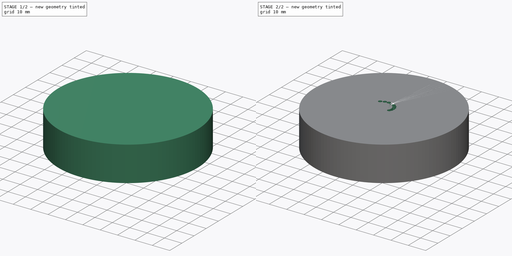
[diagram: build sequence overview — one tinted view per stage of 2, left to right]
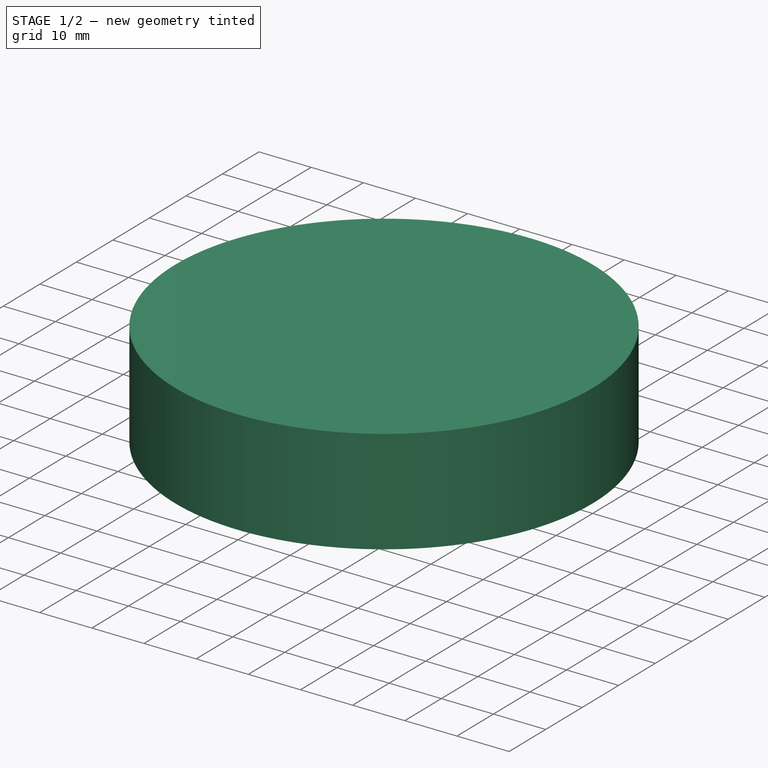
[diagram: stage 1 of 2 — iso view after this stage's code; geometry added in this stage tinted green]
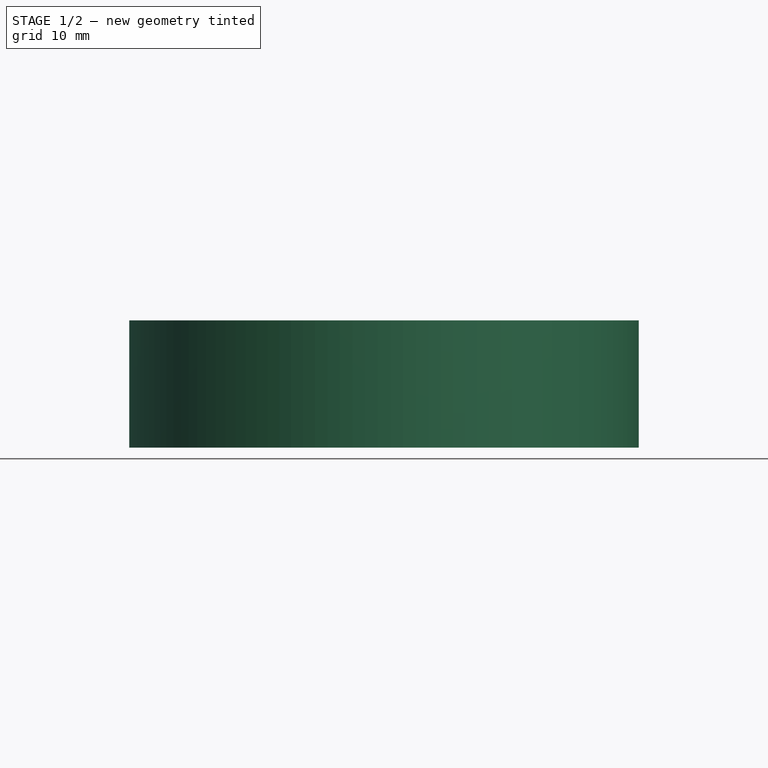
[diagram: stage 1 of 2 — front view after this stage's code; geometry added in this stage tinted green]
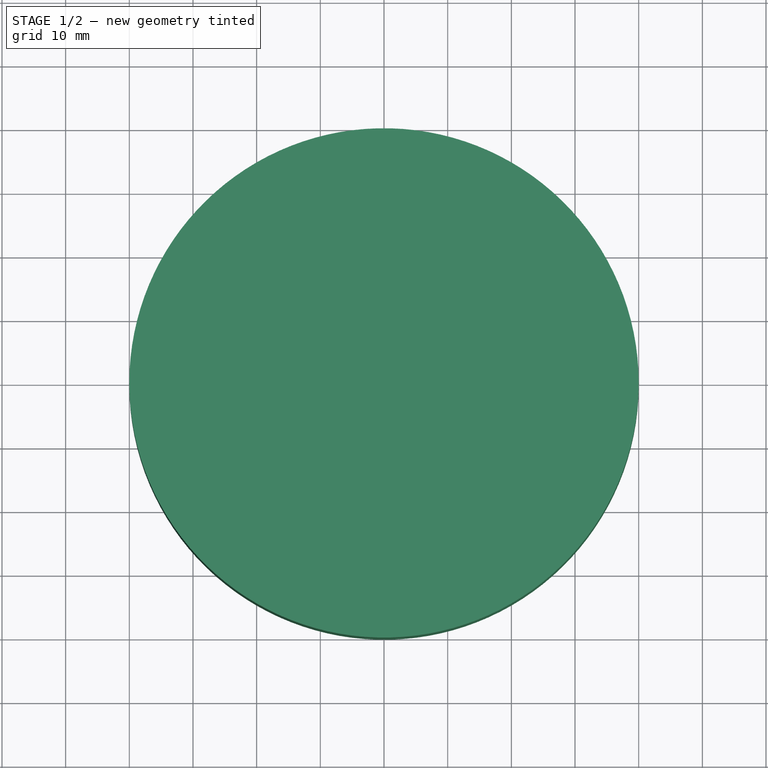
[diagram: stage 1 of 2 — top view after this stage's code; geometry added in this stage tinted green]
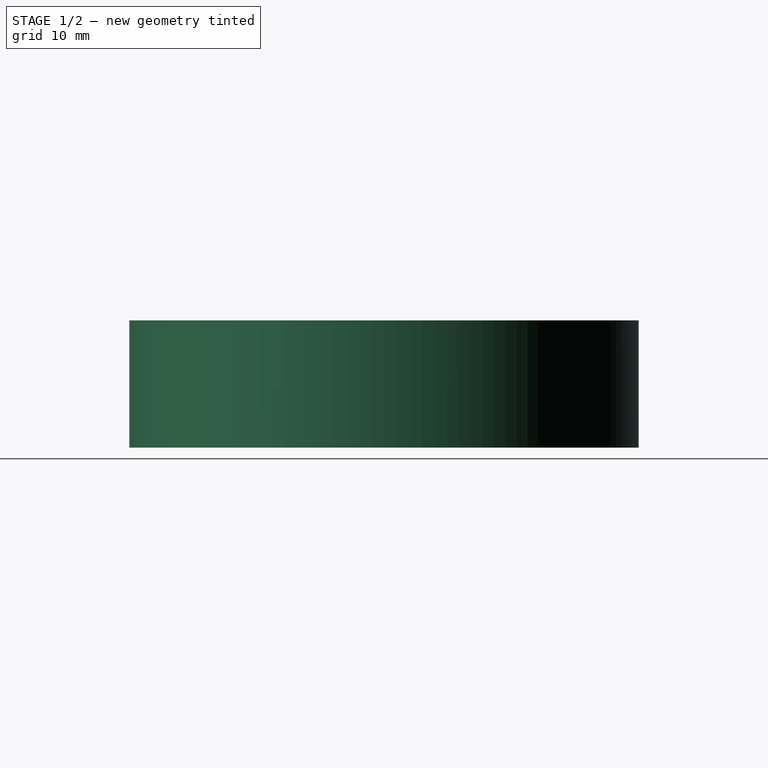
[diagram: stage 1 of 2 — right view after this stage's code; geometry added in this stage tinted green]
FCSTD DOCUMENT  (FreeCAD 2023.131R26244 +5365 (Git))
Label: Spiral Cribbage Board
License: All rights reserved
LicenseURL: http://en.wikipedia.org/wiki/All_rights_reserved
objects: Sketcher::SketchObject×2, Spreadsheet::Sheet×1, PartDesign::Pad×1, PartDesign::Pocket×1, PartDesign::Body×1
note: 11 computed .brp shape members not serialized (recipe doc carries the construction recipe); baked Part::Feature solids carry a one-line shape summary decoded from their .brp

FEATURE [Spreadsheet::Sheet] Spreadsheet  label="Parameters"
  PythonMode = false
  ShowCells = 0
  TreeRank = 1
  cells = A1=Board Diamter; B1(Board_Diameter)=80; D1=Hole; E1=X; F1=Y; A2=Board Top Thickness; B2(Board_Top_Thickness)=20; D2=0; E2(Hole_1_X)==(Peg_Track_Min_Diameter / 2 + D2 * (Peg_Track_Max_Diameter - Peg_Track_Min_Diameter) / 2 / 59) * cos(D2 * 900 / 59); F2(Hole_1_Y)==(Peg_Track_Min_Diameter / 2 + D2 * (Peg_Track_Max_Diameter - Peg_Track_Min_Diameter) / 2 / 59) * sin(D2 * 900 / 59); A3=Board Bottom Thickness; B3(Board_Botttom_Thickness)=30; D3=1; E3(Hole_2_X)==(Peg_Track_Min_Diameter / 2 + D3 * (Peg_Track_Max_Diameter - Peg_Track_Min_Diameter) / 2 / 59) * cos(D3 * 900 / 59); F3(Hole_2_Y)==(Peg_Track_Min_Diameter / 2 + D3 * (Peg_Track_Max_Diameter - Peg_Track_Min_Diameter) / 2 / 59) * sin(D3 * 900 / 59); D4=2; E4(Hole_3_X)==(Peg_Track_Min_Diameter / 2 + D4 * (Peg_Track_Max_Diameter - Peg_Track_Min_Diameter) / 2 / 59) * cos(D4 * 900 / 59); F4(Hole_3_Y)==(Peg_Track_Min_Diameter / 2 + D4 * (Peg_Track_Max_Diameter - Peg_Track_Min_Diameter) / 2 / 59) * sin(D4 * 900 / 59); A5=Peg Track Outer Diameter; B5(Peg_Track_Max_Diameter)==Board_Diameter - Peg_Hole_Diameter; D5=3; E5(Hole_4_X)==(Peg_Track_Min_Diameter / 2 + D5 * (Peg_Track_Max_Diameter - Peg_Track_Min_Diameter) / 2 / 59) * cos(D5 * 900 / 59); F5(Hole_4_Y)==(Peg_Track_Min_Diameter / 2 + D5 * (Peg_Track_Max_Diameter - Peg_Track_Min_Diameter) / 2 / 59) * sin(D5 * 900 / 59); A6=Peg Track Inner Diameter; B6(Peg_Track_Min_Diameter)=6; D6=4; E6(Hole_5_X)==(Peg_Track_Min_Diameter / 2 + D6 * (Peg_Track_Max_Diameter - Peg_Track_Min_Diameter) / 2 / 59) * cos(D6 * 900 / 59); F6(Hole_5_Y)==(Peg_Track_Min_Diameter / 2 + D6 * (Peg_Track_Max_Diameter - Peg_Track_Min_Diameter) / 2 / 59) * sin(D6 * 900 / 59); A7=Peg Hole Diameter; B7(Peg_Hole_Diameter)=2; D7=5; E7(Hole_6_X)==(Peg_Track_Min_Diameter / 2 + D7 * (Peg_Track_Max_Diameter - Peg_Track_Min_Diameter) / 2 / 59) * cos(D7 * 900 / 59); F7(Hole_6_Y)==(Peg_Track_Min_Diameter / 2 + D7 * (Peg_Track_Max_Diameter - Peg_Track_Min_Diameter) / 2 / 59) * sin(D7 * 900 / 59); A8=Peg Hole Depth; B8(Pet_Hole_Depth)=4; D8=6; E8(Hole_7_X)==(Peg_Track_Min_Diameter / 2 + D8 * (Peg_Track_Max_Diameter - Peg_Track_Min_Diameter) / 2 / 59) * cos(D8 * 900 / 59); F8(Hole_7_Y)==(Peg_Track_Min_Diameter / 2 + D8 * (Peg_Track_Max_Diameter - Peg_Track_Min_Diameter) / 2 / 59) * sin(D8 * 900 / 59); D9=7; E9(Hole_8_X)==(Peg_Track_Min_Diameter / 2 + D9 * (Peg_Track_Max_Diameter - Peg_Track_Min_Diameter) / 2 / 59) * cos(D9 * 900 / 59); F9(Hole_8_Y)==(Peg_Track_Min_Diameter / 2 + D9 * (Peg_Track_Max_Diameter - Peg_Track_Min_Diameter) / 2 / 59) * sin(D9 * 900 / 59); D10=8; E10(Hole_9_X)==(Peg_Track_Min_Diameter / 2 + D10 * (Peg_Track_Max_Diameter - Peg_Track_Min_Diameter) / 2 / 59) * cos(D10 * 900 / 59); F10(Hole_9_Y)==(Peg_Track_Min_Diameter / 2 + D10 * (Peg_Track_Max_Diameter - Peg_Track_Min_Diameter) / 2 / 59) * sin(D10 * 900 / 59); D11=9; E11(Hole_10_X)==(Peg_Track_Min_Diameter / 2 + D11 * (Peg_Track_Max_Diameter - Peg_Track_Min_Diameter) / 2 / 59) * cos(D11 * 900 / 59); F11(Hole_10_Y)==(Peg_Track_Min_Diameter / 2 + D11 * (Peg_Track_Max_Diameter - Peg_Track_Min_Diameter) / 2 / 59) * sin(D11 * 900 / 59); D12=10; E12==(Peg_Track_Min_Diameter / 2 + D12 * (Peg_Track_Max_Diameter - Peg_Track_Min_Diameter) / 2 / 59) * cos(D12 * 900 / 59); F12==(Peg_Track_Min_Diameter / 2 + D12 * (Peg_Track_Max_Diameter - Peg_Track_Min_Diameter) / 2 / 59) * sin(D12 * 900 / 59); D13=11; E13==(Peg_Track_Min_Diameter / 2 + D13 * (Peg_Track_Max_Diameter - Peg_Track_Min_Diameter) / 2 / 59) * cos(D13 * 900 / 59); F13==(Peg_Track_Min_Diameter / 2 + D13 * (Peg_Track_Max_Diameter - Peg_Track_Min_Diameter) / 2 / 59) * sin(D13 * 900 / 59); D14=12; E14==(Peg_Track_Min_Diameter / 2 + D14 * (Peg_Track_Max_Diameter - Peg_Track_Min_Diameter) / 2 / 59) * cos(D14 * 900 / 59); F14==(Peg_Track_Min_Diameter / 2 + D14 * (Peg_Track_Max_Diameter - Peg_Track_Min_Diameter) / 2 / 59) * sin(D14 * 900 / 59); D15=13; E15==(Peg_Track_Min_Diameter / 2 + D15 * (Peg_Track_Max_Diameter - Peg_Track_Min_Diameter) / 2 / 59) * cos(D15 * 900 / 59); F15==(Peg_Track_Min_Diameter / 2 + D15 * (Peg_Track_Max_Diameter - Peg_Track_Min_Diameter) / 2 / 59) * sin(D15 * 900 / 59); D16=14; E16==(Peg_Track_Min_Diameter / 2 + D16 * (Peg_Track_Max_Diameter - Peg_Track_Min_Diameter) / 2 / 59) * cos(D16 * 900 / 59); F16==(Peg_Track_Min_Diameter / 2 + D16 * (Peg_Track_Max_Diameter - Peg_Track_Min_Diameter) / 2 / 59) * sin(D16 * 900 / 59); D17=15; E17==(Peg_Track_Min_Diameter / 2 + D17 * (Peg_Track_Max_Diameter - Peg_Track_Min_Diameter) / 2 / 59) * cos(D17 * 900 / 59); F17==(Peg_Track_Min_Diameter / 2 + D17 * (Peg_Track_Max_Diameter - Peg_Track_Min_Diameter) / 2 / 59) * sin(D17 * 900 / 59); D18=16; E18==(Peg_Track_Min_Diameter / 2 + D18 * (Peg_Track_Max_Diameter - Peg_Track_Min_Diameter) / 2 / 59) * cos(D18 * 900 / 59); F18==(Peg_Track_Min_Diameter / 2 + D18 * (Peg_Track_Max_Diameter - Peg_Track_Min_Diameter) / 2 / 59) * sin(D18 * 900 / 59); D19=17; E19==(Peg_Track_Min_Diameter / 2 + D19 * (Peg_Track_Max_Diameter - Peg_Track_Min_Diameter) / 2 / 59) * cos(D19 * 900 / 59); F19==(Peg_Track_Min_Diameter / 2 + D19 * (Peg_Track_Max_Diameter - Peg_Track_Min_Diameter) / 2 / 59) * sin(D19 * 900 / 59); D20=18; E20==(Peg_Track_Min_Diameter / 2 + D20 * (Peg_Track_Max_Diameter - Peg_Track_Min_Diameter) / 2 / 59) * cos(D20 * 900 / 59); F20==(Peg_Track_Min_Diameter / 2 + D20 * (Peg_Track_Max_Diameter - Peg_Track_Min_Diameter) / 2 / 59) * sin(D20 * 900 / 59); D21=19; E21==(Peg_Track_Min_Diameter / 2 + D21 * (Peg_Track_Max_Diameter - Peg_Track_Min_Diameter) / 2 / 59) * cos(D21 * 900 / 59); F21==(Peg_Track_Min_Diameter / 2 + D21 * (Peg_Track_Max_Diameter - Peg_Track_Min_Diameter) / 2 / 59) * sin(D21 * 900 / 59); D22=20; E22==(Peg_Track_Min_Diameter / 2 + D22 * (Peg_Track_Max_Diameter - Peg_Track_Min_Diameter) / 2 / 59) * cos(D22 * 900 / 59); F22==(Peg_Track_Min_Diameter / 2 + D22 * (Peg_Track_Max_Diameter - Peg_Track_Min_Diameter) / 2 / 59) * sin(D22 * 900 / 59); D23=21; E23==(Peg_Track_Min_Diameter / 2 + D23 * (Peg_Track_Max_Diameter - Peg_Track_Min_Diameter) / 2 / 59) * cos(D23 * 900 / 59); F23==(Peg_Track_Min_Diameter / 2 + D23 * (Peg_Track_Max_Diameter - Peg_Track_Min_Diameter) / 2 / 59) * sin(D23 * 900 / 59); D24=22; E24==(Peg_Track_Min_Diameter / 2 + D24 * (Peg_Track_Max_Diameter - Peg_Track_Min_Diameter) / 2 / 59) * cos(D24 * 900 / 59); F24==(Peg_Track_Min_Diameter / 2 + D24 * (Peg_Track_Max_Diameter - Peg_Track_Min_Diameter) / 2 / 59) * sin(D24 * 900 / 59); D25=23; E25==(Peg_Track_Min_Diameter / 2 + D25 * (Peg_Track_Max_Diameter - Peg_Track_Min_Diameter) / 2 / 59) * cos(D25 * 900 / 59); F25==(Peg_Track_Min_Diameter / 2 + D25 * (Peg_Track_Max_Diameter - Peg_Track_Min_Diameter) / 2 / 59) * sin(D25 * 900 / 59); D26=24; E26==(Peg_Track_Min_Diameter / 2 + D26 * (Peg_Track_Max_Diameter - Peg_Track_Min_Diameter) / 2 / 59) * cos(D26 * 900 / 59); F26==(Peg_Track_Min_Diameter / 2 + D26 * (Peg_Track_Max_Diameter - Peg_Track_Min_Diameter) / 2 / 59) * sin(D26 * 900 / 59); D27=25; E27==(Peg_Track_Min_Diameter / 2 + D27 * (Peg_Track_Max_Diameter - Peg_Track_Min_Diameter) / 2 / 59) * cos(D27 * 900 / 59); F27==(Peg_Track_Min_Diameter / 2 + D27 * (Peg_Track_Max_Diameter - Peg_Track_Min_Diameter) / 2 / 59) * sin(D27 * 900 / 59); D28=26; E28==(Peg_Track_Min_Diameter / 2 + D28 * (Peg_Track_Max_Diameter - Peg_Track_Min_Diameter) / 2 / 59) * cos(D28 * 900 / 59); F28==(Peg_Track_Min_Diameter / 2 + D28 * (Peg_Track_Max_Diameter - Peg_Track_Min_Diameter) / 2 / 59) * sin(D28 * 900 / 59); D29=27; E29==(Peg_Track_Min_Diameter / 2 + D29 * (Peg_Track_Max_Diameter - Peg_Track_Min_Diameter) / 2 / 59) * cos(D29 * 900 / 59); F29==(Peg_Track_Min_Diameter / 2 + D29 * (Peg_Track_Max_Diameter - Peg_Track_Min_Diameter) / 2 / 59) * sin(D29 * 900 / 59); D30=28; E30==(Peg_Track_Min_Diameter / 2 + D30 * (Peg_Track_Max_Diameter - Peg_Track_Min_Diameter) / 2 / 59) * cos(D30 * 900 / 59); F30==(Peg_Track_Min_Diameter / 2 + D30 * (Peg_Track_Max_Diameter - Peg_Track_Min_Diameter) / 2 / 59) * sin(D30 * 900 / 59); D31=29; E31==(Peg_Track_Min_Diameter / 2 + D31 * (Peg_Track_Max_Diameter - Peg_Track_Min_Diameter) / 2 / 59) * cos(D31 * 900 / 59); F31==(Peg_Track_Min_Diameter / 2 + D31 * (Peg_Track_Max_Diameter - Peg_Track_Min_Diameter) / 2 / 59) * sin(D31 * 900 / 59); D32=30; E32==(Peg_Track_Min_Diameter / 2 + D32 * (Peg_Track_Max_Diameter - Peg_Track_Min_Diameter) / 2 / 59) * cos(D32 * 900 / 59); F32==(Peg_Track_Min_Diameter / 2 + D32 * (Peg_Track_Max_Diameter - Peg_Track_Min_Diameter) / 2 / 59) * sin(D32 * 900 / 59); D33=31; E33==(Peg_Track_Min_Diameter / 2 + D33 * (Peg_Track_Max_Diameter - Peg_Track_Min_Diameter) / 2 / 59) * cos(D33 * 900 / 59); F33==(Peg_Track_Min_Diameter / 2 + D33 * (Peg_Track_Max_Diameter - Peg_Track_Min_Diameter) / 2 / 59) * sin(D33 * 900 / 59); D34=32; E34==(Peg_Track_Min_Diameter / 2 + D34 * (Peg_Track_Max_Diameter - Peg_Track_Min_Diameter) / 2 / 59) * cos(D34 * 900 / 59); F34==(Peg_Track_Min_Diameter / 2 + D34 * (Peg_Track_Max_Diameter - Peg_Track_Min_Diameter) / 2 / 59) * sin(D34 * 900 / 59); D35=33; E35==(Peg_Track_Min_Diameter / 2 + D35 * (Peg_Track_Max_Diameter - Peg_Track_Min_Diameter) / 2 / 59) * cos(D35 * 900 / 59); F35==(Peg_Track_Min_Diameter / 2 + D35 * (Peg_Track_Max_Diameter - Peg_Track_Min_Diameter) / 2 / 59) * sin(D35 * 900 / 59); D36=34; E36==(Peg_Track_Min_Diameter / 2 + D36 * (Peg_Track_Max_Diameter - Peg_Track_Min_Diameter) / 2 / 59) * cos(D36 * 900 / 59); F36==(Peg_Track_Min_Diameter / 2 + D36 * (Peg_Track_Max_Diameter - Peg_Track_Min_Diameter) / 2 / 59) * sin(D36 * 900 / 59); D37=35; E37==(Peg_Track_Min_Diameter / 2 + D37 * (Peg_Track_Max_Diameter - Peg_Track_Min_Diameter) / 2 / 59) * cos(D37 * 900 / 59); F37==(Peg_Track_Min_Diameter / 2 + D37 * (Peg_Track_Max_Diameter - Peg_Track_Min_Diameter) / 2 / 59) * sin(D37 * 900 / 59); D38=36; E38==(Peg_Track_Min_Diameter / 2 + D38 * (Peg_Track_Max_Diameter - Peg_Track_Min_Diameter) / 2 / 59) * cos(D38 * 900 / 59); F38==(Peg_Track_Min_Diameter / 2 + D38 * (Peg_Track_Max_Diameter - Peg_Track_Min_Diameter) / 2 / 59) * sin(D38 * 900 / 59); D39=37; E39==(Peg_Track_Min_Diameter / 2 + D39 * (Peg_Track_Max_Diameter - Peg_Track_Min_Diameter) / 2 / 59) * cos(D39 * 900 / 59); F39==(Peg_Track_Min_Diameter / 2 + D39 * (Peg_Track_Max_Diameter - Peg_Track_Min_Diameter) / 2 / 59) * sin(D39 * 900 / 59); D40=38; E40==(Peg_Track_Min_Diameter / 2 + D40 * (Peg_Track_Max_Diameter - Peg_Track_Min_Diameter) / 2 / 59) * cos(D40 * 900 / 59); F40==(Peg_Track_Min_Diameter / 2 + D40 * (Peg_Track_Max_Diameter - Peg_Track_Min_Diameter) / 2 / 59) * sin(D40 * 900 / 59); D41=39; E41==(Peg_Track_Min_Diameter / 2 + D41 * (Peg_Track_Max_Diameter - Peg_Track_Min_Diameter) / 2 / 59) * cos(D41 * 900 / 59); F41==(Peg_Track_Min_Diameter / 2 + D41 * (Peg_Track_Max_Diameter - Peg_Track_Min_Diameter) / 2 / 59) * sin(D41 * 900 / 59); D42=40; E42==(Peg_Track_Min_Diameter / 2 + D42 * (Peg_Track_Max_Diameter - Peg_Track_Min_Diameter) / 2 / 59) * cos(D42 * 900 / 59); F42==(Peg_Track_Min_Diameter / 2 + D42 * (Peg_Track_Max_Diameter - Peg_Track_Min_Diameter) / 2 / 59) * sin(D42 * 900 / 59); D43=41; E43==(Peg_Track_Min_Diameter / 2 + D43 * (Peg_Track_Max_Diameter - Peg_Track_Min_Diameter) / 2 / 59) * cos(D43 * 900 / 59); F43==(Peg_Track_Min_Diameter / 2 + D43 * (Peg_Track_Max_Diameter - Peg_Track_Min_Diameter) / 2 / 59) * sin(D43 * 900 / 59); D44=42; E44==(Peg_Track_Min_Diameter / 2 + D44 * (Peg_Track_Max_Diameter - Peg_Track_Min_Diameter) / 2 / 59) * cos(D44 * 900 / 59); F44==(Peg_Track_Min_Diameter / 2 + D44 * (Peg_Track_Max_Diameter - Peg_Track_Min_Diameter) / 2 / 59) * sin(D44 * 900 / 59); D45=43; E45==(Peg_Track_Min_Diameter / 2 + D45 * (Peg_Track_Max_Diameter - Peg_Track_Min_Diameter) / 2 / 59) * cos(D45 * 900 / 59); F45==(Peg_Track_Min_Diameter / 2 + D45 * (Peg_Track_Max_Diameter - Peg_Track_Min_Diameter) / 2 / 59) * sin(D45 * 900 / 59); D46=44; E46==(Peg_Track_Min_Diameter / 2 + D46 * (Peg_Track_Max_Diameter - Peg_Track_Min_Diameter) / 2 / 59) * cos(D46 * 900 / 59); F46==(Peg_Track_Min_Diameter / 2 + D46 * (Peg_Track_Max_Diameter - Peg_Track_Min_Diameter) / 2 / 59) * sin(D46 * 900 / 59); D47=45; E47==(Peg_Track_Min_Diameter / 2 + D47 * (Peg_Track_Max_Diameter - Peg_Track_Min_Diameter) / 2 / 59) * cos(D47 * 900 / 59); F47==(Peg_Track_Min_Diameter / 2 + D47 * (Peg_Track_Max_Diameter - Peg_Track_Min_Diameter) / 2 / 59) * sin(D47 * 900 / 59); D48=46; E48==(Peg_Track_Min_Diameter / 2 + D48 * (Peg_Track_Max_Diameter - Peg_Track_Min_Diameter) / 2 / 59) * cos(D48 * 900 / 59); F48==(Peg_Track_Min_Diameter / 2 + D48 * (Peg_Track_Max_Diameter - Peg_Track_Min_Diameter) / 2 / 59) * sin(D48 * 900 / 59); D49=47; E49==(Peg_Track_Min_Diameter / 2 + D49 * (Peg_Track_Max_Diameter - Peg_Track_Min_Diameter) / 2 / 59) * cos(D49 * 900 / 59); F49==(Peg_Track_Min_Diameter / 2 + D49 * (Peg_Track_Max_Diameter - Peg_Track_Min_Diameter) / 2 / 59) * sin(D49 * 900 / 59); D50=48; E50==(Peg_Track_Min_Diameter / 2 + D50 * (Peg_Track_Max_Diameter - Peg_Track_Min_Diameter) / 2 / 59) * cos(D50 * 900 / 59); F50==(Peg_Track_Min_Diameter / 2 + D50 * (Peg_Track_Max_Diameter - Peg_Track_Min_Diameter) / 2 / 59) * sin(D50 * 900 / 59); D51=49; E51==(Peg_Track_Min_Diameter / 2 + D51 * (Peg_Track_Max_Diameter - Peg_Track_Min_Diameter) / 2 / 59) * cos(D51 * 900 / 59); F51==(Peg_Track_Min_Diameter / 2 + D51 * (Peg_Track_Max_Diameter - Peg_Track_Min_Diameter) / 2 / 59) * sin(D51 * 900 / 59); D52=50; E52==(Peg_Track_Min_Diameter / 2 + D52 * (Peg_Track_Max_Diameter - Peg_Track_Min_Diameter) / 2 / 59) * cos(D52 * 900 / 59); F52==(Peg_Track_Min_Diameter / 2 + D52 * (Peg_Track_Max_Diameter - Peg_Track_Min_Diameter) / 2 / 59) * sin(D52 * 900 / 59); D53=51; E53==(Peg_Track_Min_Diameter / 2 + D53 * (Peg_Track_Max_Diameter - Peg_Track_Min_Diameter) / 2 / 59) * cos(D53 * 900 / 59); F53==(Peg_Track_Min_Diameter / 2 + D53 * (Peg_Track_Max_Diameter - Peg_Track_Min_Diameter) / 2 / 59) * sin(D53 * 900 / 59); D54=52; E54==(Peg_Track_Min_Diameter / 2 + D54 * (Peg_Track_Max_Diameter - Peg_Track_Min_Diameter) / 2 / 59) * cos(D54 * 900 / 59); F54==(Peg_Track_Min_Diameter / 2 + D54 * (Peg_Track_Max_Diameter - Peg_Track_Min_Diameter) / 2 / 59) * sin(D54 * 900 / 59); D55=53; E55==(Peg_Track_Min_Diameter / 2 + D55 * (Peg_Track_Max_Diameter - Peg_Track_Min_Diameter) / 2 / 59) * cos(D55 * 900 / 59); F55==(Peg_Track_Min_Diameter / 2 + D55 * (Peg_Track_Max_Diameter - Peg_Track_Min_Diameter) / 2 / 59) * sin(D55 * 900 / 59); D56=54; E56==(Peg_Track_Min_Diameter / 2 + D56 * (Peg_Track_Max_Diameter - Peg_Track_Min_Diameter) / 2 / 59) * cos(D56 * 900 / 59); F56==(Peg_Track_Min_Diameter / 2 + D56 * (Peg_Track_Max_Diameter - Peg_Track_Min_Diameter) / 2 / 59) * sin(D56 * 900 / 59); D57=55; E57==(Peg_Track_Min_Diameter / 2 + D57 * (Peg_Track_Max_Diameter - Peg_Track_Min_Diameter) / 2 / 59) * cos(D57 * 900 / 59); F57==(Peg_Track_Min_Diameter / 2 + D57 * (Peg_Track_Max_Diameter - Peg_Track_Min_Diameter) / 2 / 59) * sin(D57 * 900 / 59); D58=56; E58==(Peg_Track_Min_Diameter / 2 + D58 * (Peg_Track_Max_Diameter - Peg_Track_Min_Diameter) / 2 / 59) * cos(D58 * 900 / 59); F58==(Peg_Track_Min_Diameter / 2 + D58 * (Peg_Track_Max_Diameter - Peg_Track_Min_Diameter) / 2 / 59) * sin(D58 * 900 / 59); D59=57; E59==(Peg_Track_Min_Diameter / 2 + D59 * (Peg_Track_Max_Diameter - Peg_Track_Min_Diameter) / 2 / 59) * cos(D59 * 900 / 59); F59==(Peg_Track_Min_Diameter / 2 + D59 * (Peg_Track_Max_Diameter - Peg_Track_Min_Diameter) / 2 / 59) * sin(D59 * 900 / 59); D60=58; E60==(Peg_Track_Min_Diameter / 2 + D60 * (Peg_Track_Max_Diameter - Peg_Track_Min_Diameter) / 2 / 59) * cos(D60 * 900 / 59); F60==(Peg_Track_Min_Diameter / 2 + D60 * (Peg_Track_Max_Diameter - Peg_Track_Min_Diameter) / 2 / 59) * sin(D60 * 900 / 59); D61=59; E61==(Peg_Track_Min_Diameter / 2 + D61 * (Peg_Track_Max_Diameter - Peg_Track_Min_Diameter) / 2 / 59) * cos(D61 * 900 / 59); F61==(Peg_Track_Min_Diameter / 2 + D61 * (Peg_Track_Max_Diameter - Peg_Track_Min_Diameter) / 2 / 59) * sin(D61 * 900 / 59)
FEATURE [Sketcher::SketchObject] Sketch  label="Top Sketch"
  ArcFitTolerance = 1e-06
  AttachmentSupport = -> [XY_Plane]
  ExternalBSplineMaxDegree = 5
  ExternalBSplineTolerance = 0.0001
  FullyConstrained = true
  InternalTolerance = 1e-06
  InvalidShape = false
  MakeInternals = false
  MapMode = 5
  Support = -> [XY_Plane]
  TreeRank = 12
  ValidateShape = true
  expr: Constraints[1] = <<Parameters>>.Board_Diameter
  sketch-geometry (1):
    g0: Circle CenterX=0 CenterY=0 CenterZ=0 NormalX=0 NormalY=0 NormalZ=1 AngleXU=0 Radius=40
  constraints (2):
    c: Coincident(g0,g-1)
    c: Diameter(g0) = 80
FEATURE [PartDesign::Pad] Pad  label="Top"
  AddSubType = 0
  AlongSketchNormal = false
  AutoTaperInnerAngle = true
  CheckUpToFaceLimits = true
  ClaimChildren = false
  Direction = (0,0,1)
  Fit = 0
  FitJoin = 0
  InnerFit = 0
  InnerFitJoin = 0
  InvalidShape = false
  Length = 20
  Length2 = 100
  Linearize = true
  NewSolid = false
  Profile = -> Sketch
  Suppress = false
  TaperInnerAngle = 0
  TaperInnerAngleRev = 0
  TreeRank = 13
  Type = 0
  ValidateShape = true
  _ProfileBasedVersion = 1
  expr: Length = <<Parameters>>.Board_Top_Thickness
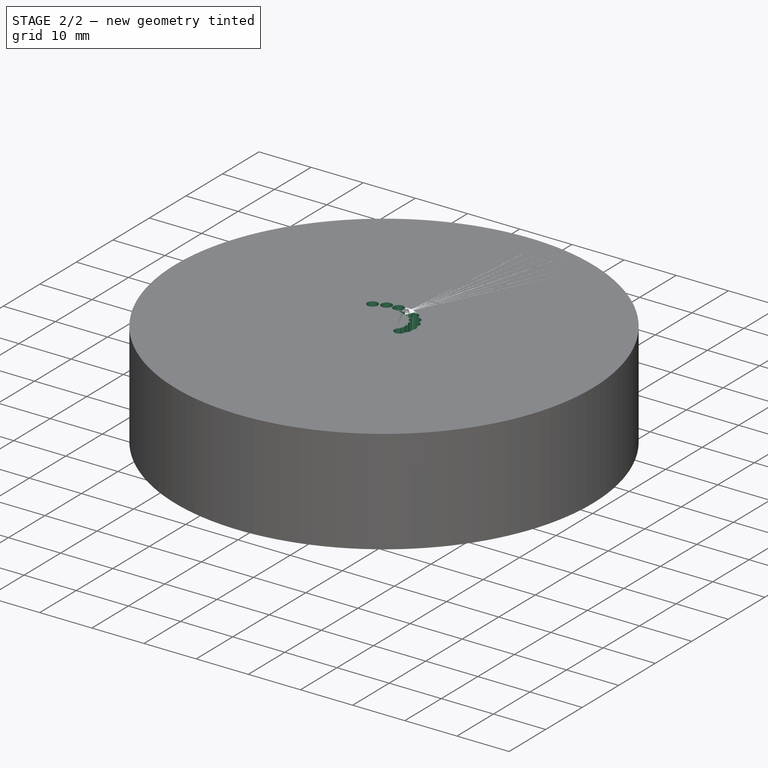
[diagram: stage 2 of 2 — iso view after this stage's code; geometry added in this stage tinted green]
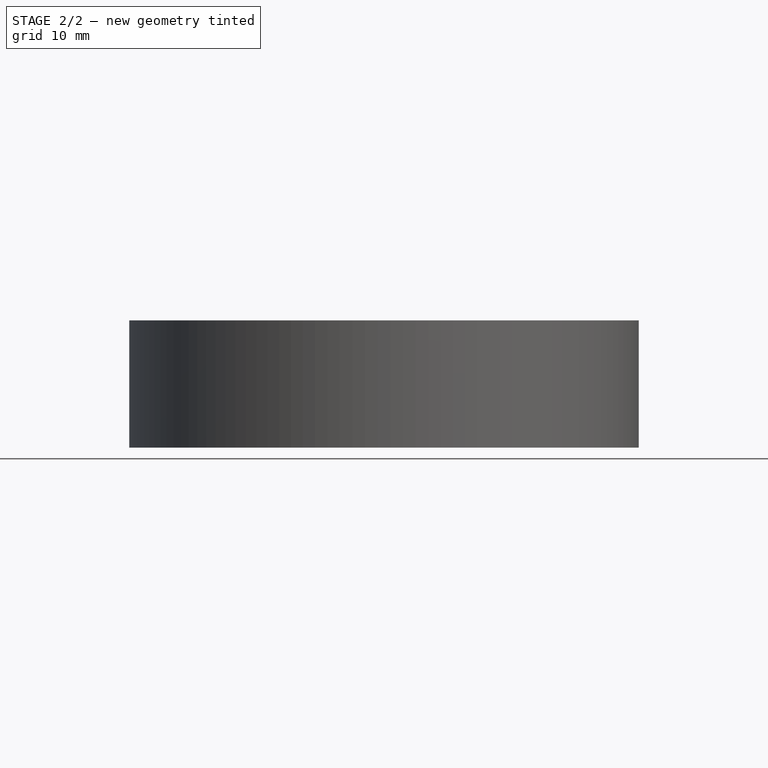
[diagram: stage 2 of 2 — front view after this stage's code; geometry added in this stage tinted green]
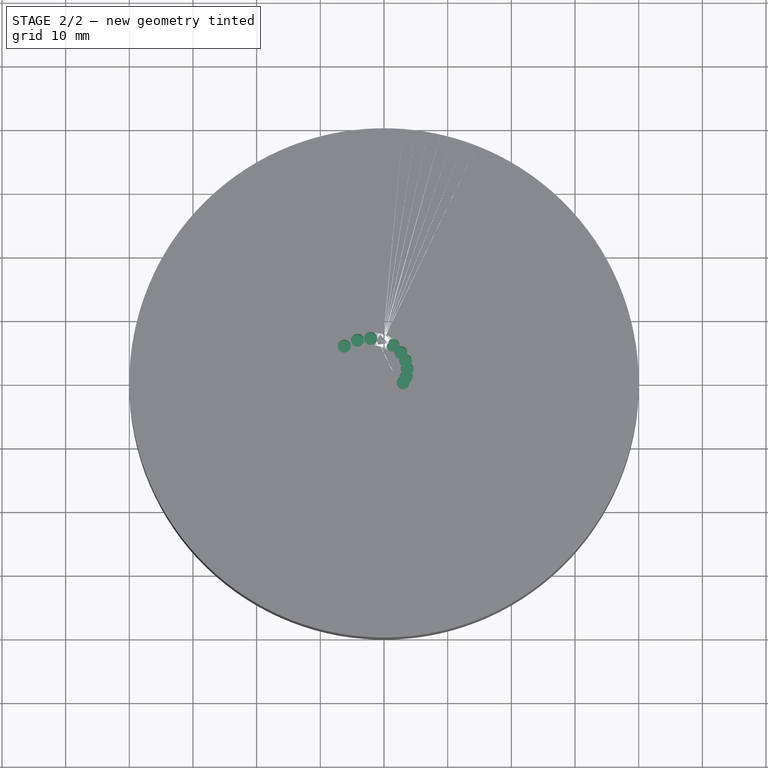
[diagram: stage 2 of 2 — top view after this stage's code; geometry added in this stage tinted green]
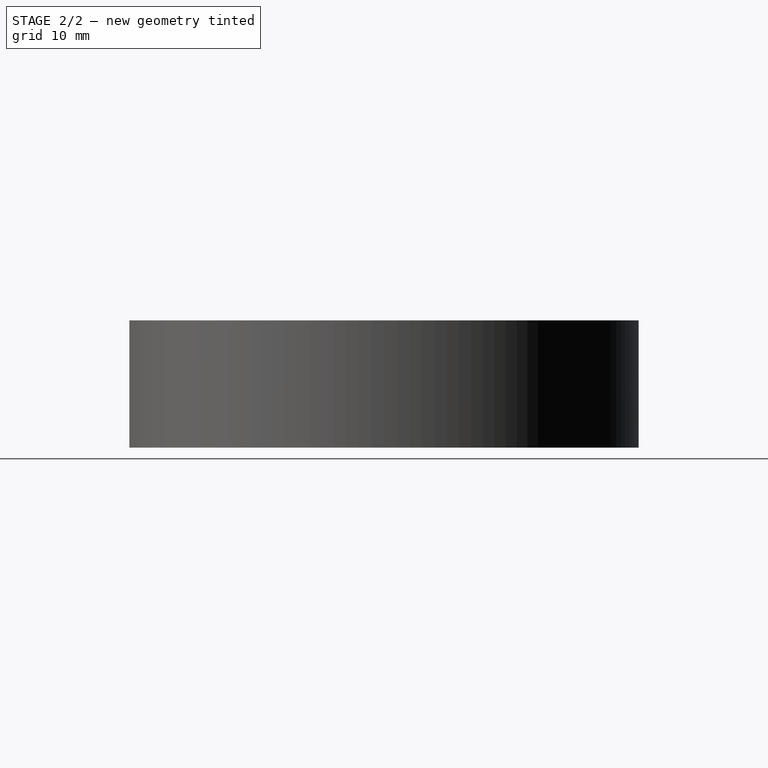
[diagram: stage 2 of 2 — right view after this stage's code; geometry added in this stage tinted green]
FEATURE [Sketcher::SketchObject] Sketch001
  ArcFitTolerance = 1e-06
  AttachmentSupport = -> [Pad]
  ExternalBSplineMaxDegree = 5
  ExternalBSplineTolerance = 0.0001
  FullyConstrained = true
  InternalTolerance = 1e-06
  InvalidShape = false
  MakeInternals = false
  MapMode = 5
  Placement = pos=(0,0,20) rot=(0,0,1;0rad)
  Support = -> [Pad]
  TreeRank = 14
  ValidateShape = true
  expr: Constraints[0] = <<Parameters>>.Peg_Hole_Diameter
  expr: Constraints[16] = <<Parameters>>.Hole_4_X
  expr: Constraints[17] = <<Parameters>>.Hole_4_Y
  expr: Constraints[18] = <<Parameters>>.Hole_5_X
  expr: Constraints[19] = <<Parameters>>.Hole_5_Y
  expr: Constraints[1] = <<Parameters>>.Hole_1_X
  expr: Constraints[20] = <<Parameters>>.Hole_6_X
  expr: Constraints[21] = <<Parameters>>.Hole_6_Y
  expr: Constraints[22] = <<Parameters>>.Hole_7_X
  expr: Constraints[23] = <<Parameters>>.Hole_7_Y
  expr: Constraints[24] = <<Parameters>>.Hole_8_X
  expr: Constraints[25] = <<Parameters>>.Hole_8_Y
  expr: Constraints[26] = <<Parameters>>.Hole_9_X
  expr: Constraints[27] = <<Parameters>>.Hole_9_Y
  expr: Constraints[28] = <<Parameters>>.Hole_10_X
  expr: Constraints[29] = <<Parameters>>.Hole_10_Y
  expr: Constraints[2] = <<Parameters>>.Hole_1_Y
  expr: Constraints[4] = <<Parameters>>.Hole_2_X
  expr: Constraints[5] = <<Parameters>>.Hole_2_Y
  expr: Constraints[7] = <<Parameters>>.Hole_3_X
  expr: Constraints[8] = <<Parameters>>.Hole_3_Y
  sketch-geometry (10):
    g0: Circle CenterX=3 CenterY=0 CenterZ=0 NormalX=0 NormalY=0 NormalZ=1 AngleXU=0 Radius=1
    g1: Circle CenterX=3.48298 CenterY=0.949845 CenterZ=0 NormalX=0 NormalY=0 NormalZ=1 AngleXU=0 Radius=1
    g2: Circle CenterX=3.63605 CenterY=2.14252 CenterZ=0 NormalX=0 NormalY=0 NormalZ=1 AngleXU=0 Radius=1
    g3: Circle CenterX=3.36991 CenterY=3.46085 CenterZ=0 NormalX=0 NormalY=0 NormalZ=1 AngleXU=0 Radius=1
    g4: Circle CenterX=2.63629 CenterY=4.7593 CenterZ=0 NormalX=0 NormalY=0 NormalZ=1 AngleXU=0 Radius=1
    g5: Circle CenterX=1.43603 CenterY=5.87797 CenterZ=0 NormalX=0 NormalY=0 NormalZ=1 AngleXU=0 Radius=1
    g6: Circle CenterX=-0.17732 CenterY=6.65866 CenterZ=0 NormalX=0 NormalY=0 NormalZ=1 AngleXU=0 Radius=1
    g7: Circle CenterX=-2.09913 CenterY=6.96159 CenterZ=0 NormalX=0 NormalY=0 NormalZ=1 AngleXU=0 Radius=1
    g8: Circle CenterX=-4.18044 CenterY=6.6813 CenterZ=0 NormalX=0 NormalY=0 NormalZ=1 AngleXU=0 Radius=1
    g9: Circle CenterX=-6.23935 CenterY=5.7599 CenterZ=0 NormalX=0 NormalY=0 NormalZ=1 AngleXU=0 Radius=1
  constraints (24):
    c: Diameter(g0) = 2
    c: DistanceX(g-1,g0) = 3
    c: DistanceY(g-1,g0) = 0
    c: Equal(g0,g1)
    c: DistanceX(g-1,g1) = 3.48298
    c: DistanceY(g-1,g1) = 0.949845
    c: Equal(g0,g2)
    c: DistanceX(g-1,g2) = 3.63605
    c: DistanceY(g-1,g2) = 2.14252
    c: Equal(g0, g3-g9) x7
    c: DistanceX(g-1,g3) = 3.36991
    c: DistanceY(g-1,g3) = 3.46085
    c: DistanceX(g-1,g4) = 2.63629
    c: DistanceY(g-1,g4) = 4.7593
    c: DistanceX(g-1,g5) = 1.43603
    c: DistanceY(g-1,g5) = 5.87797
    c: DistanceX(g-1,g6) = -0.17732
    c: DistanceY(g-1,g6) = 6.65866
    c: DistanceX(g-1,g7) = -2.09913
    c: DistanceY(g-1,g7) = 6.96159
    c: DistanceX(g-1,g8) = -4.18044
    c: DistanceY(g-1,g8) = 6.6813
    c: DistanceX(g-1,g9) = -6.23935
    c: DistanceY(g-1,g9) = 5.7599
FEATURE [PartDesign::Pocket] Pocket
  AddSubType = 1
  AutoTaperInnerAngle = true
  BaseFeature = -> Pad
  CheckUpToFaceLimits = true
  ClaimChildren = false
  Fit = 0
  FitJoin = 0
  InnerFit = 0
  InnerFitJoin = 0
  InvalidShape = false
  Length = 5
  Length2 = 100
  Linearize = true
  NewSolid = false
  Profile = -> Sketch001
  Suppress = false
  TaperInnerAngle = 0
  TaperInnerAngleRev = 0
  TreeRank = 15
  Type = 0
  ValidateShape = true
  _ProfileBasedVersion = 1
  _Version = 1
FEATURE [PartDesign::Body] Body
  AutoGroupSolids = false
  ClaimAllChildren = false
  ExportMode = 0
  Group = -> [Sketch,Pad,Sketch001,Pocket]
  InvalidShape = false
  Origin = -> Origin
  Tip = -> Pocket
  TreeRank = 11
  ValidateShape = true
  _ExportChildren = -> [Pad,Pocket]
  _GroupVersion = 1
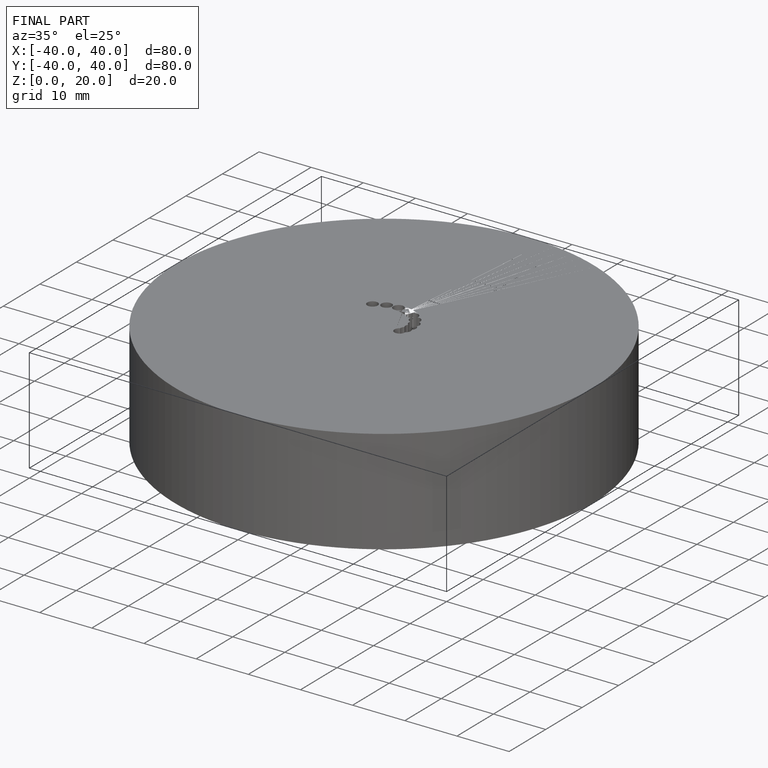
[diagram: finished part — iso view with bounding-box wireframe]
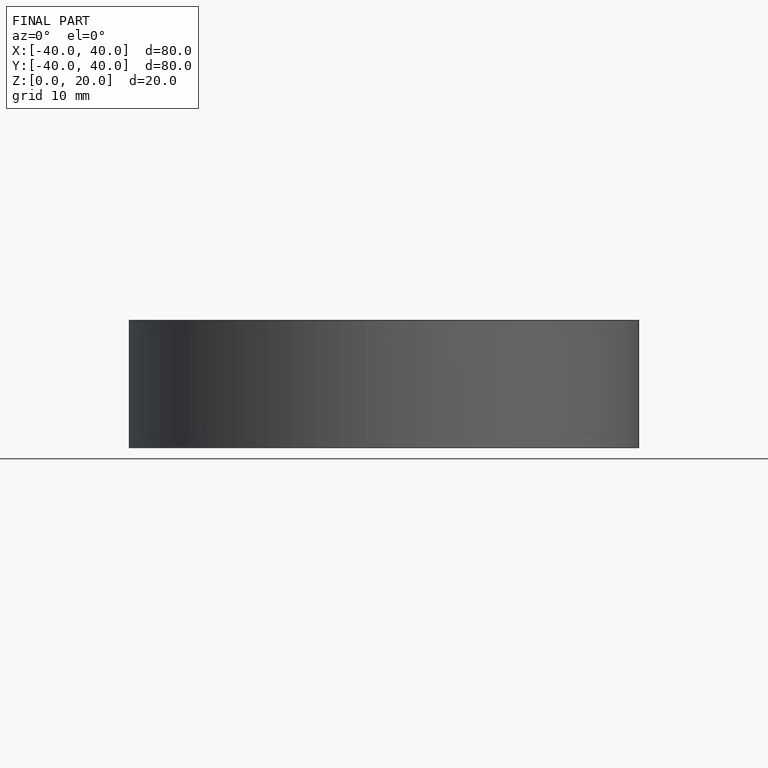
[diagram: finished part — front view with bounding-box wireframe]
